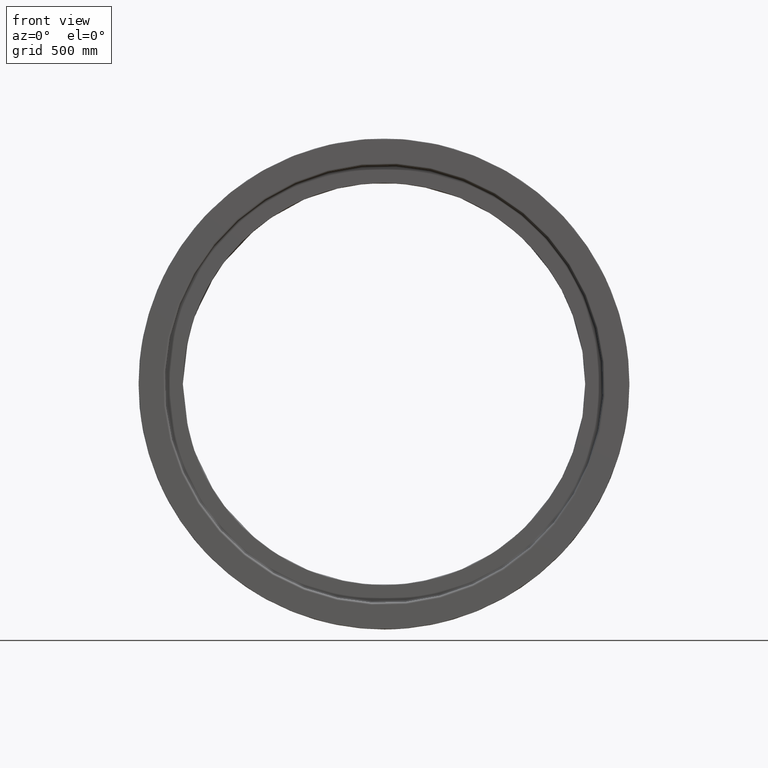
[diagram: clean part render]
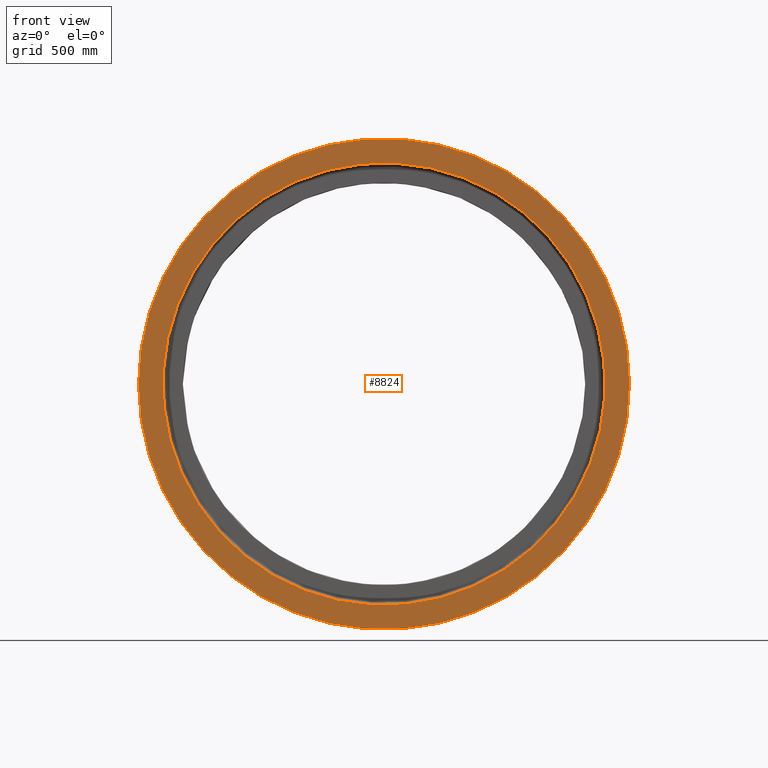
[diagram: same view with one face highlighted and labeled with its STEP entity id]
A machine part, front view. The second image highlights one B-rep face of the part: STEP entity #8824.
In plain terms, the highlighted planar face has unit normal (0, 1, 0).
Its self-contained STEP definition (entity closure, byte-faithful):
#880 = VERTEX_POINT ( 'NONE', #22556 ) ;
#1027 = VERTEX_POINT ( 'NONE', #5310 ) ;
#1155 = CARTESIAN_POINT ( 'NONE',  ( 0.0000000000000000000, 0.0000000000000000000, -145.0000000000000000 ) ) ;
#1221 = CIRCLE ( 'NONE', #3422, 1220.000000000000000 ) ;
#1373 = DIRECTION ( 'NONE',  ( 1.000000000000000000, 0.0000000000000000000, 0.0000000000000000000 ) ) ;
#1471 = ORIENTED_EDGE ( 'NONE', *, *, #7753, .T. ) ;
#2582 = DIRECTION ( 'NONE',  ( 1.000000000000000000, 0.0000000000000000000, 0.0000000000000000000 ) ) ;
#2609 = EDGE_CURVE ( 'NONE', #21825, #1027, #1221, .T. ) ;
#3422 = AXIS2_PLACEMENT_3D ( 'NONE', #16474, #17850, #19577 ) ;
#4214 = DIRECTION ( 'NONE',  ( -1.532081463855070920E-17, -1.912374979584885558E-16, 1.000000000000000000 ) ) ;
#5310 = CARTESIAN_POINT ( 'NONE',  ( -1220.000000000000000, 1.494069094959770827E-13, -145.0000000000000000 ) ) ;
#5758 = CIRCLE ( 'NONE', #22288, 1099.000000000000000 ) ;
#7753 = EDGE_CURVE ( 'NONE', #8758, #880, #16132, .T. ) ;
#8743 = DIRECTION ( 'NONE',  ( -1.532081463855070920E-17, -1.912374979584885558E-16, 1.000000000000000000 ) ) ;
#8758 = VERTEX_POINT ( 'NONE', #9978 ) ;
#8824 = ADVANCED_FACE ( 'NONE', ( #19058, #15503 ), #16894, .F. ) ;
#9604 = CARTESIAN_POINT ( 'NONE',  ( 0.0000000000000000000, 2.772943720398084389E-14, -145.0000000000000284 ) ) ;
#9978 = CARTESIAN_POINT ( 'NONE',  ( -851.3164014389337808, -695.0261755078464603, -145.0000000000001137 ) ) ;
#10463 = CARTESIAN_POINT ( 'NONE',  ( 0.0000000000000000000, 2.772943720398084389E-14, -145.0000000000000284 ) ) ;
#11481 = ORIENTED_EDGE ( 'NONE', *, *, #15297, .T. ) ;
#12980 = AXIS2_PLACEMENT_3D ( 'NONE', #1155, #17113, #1373 ) ;
#13926 = DIRECTION ( 'NONE',  ( 0.7746282087706404251, 0.6324169021909431532, 1.262765041657366403E-16 ) ) ;
#14163 = ORIENTED_EDGE ( 'NONE', *, *, #2609, .F. ) ;
#14293 = AXIS2_PLACEMENT_3D ( 'NONE', #9604, #4214, #18001 ) ;
#14586 = EDGE_LOOP ( 'NONE', ( #11481, #1471 ) ) ;
#15297 = EDGE_CURVE ( 'NONE', #880, #8758, #5758, .T. ) ;
#15503 = FACE_OUTER_BOUND ( 'NONE', #22107, .T. ) ;
#16132 = CIRCLE ( 'NONE', #14293, 1099.000000000000000 ) ;
#16339 = ORIENTED_EDGE ( 'NONE', *, *, #22512, .F. ) ;
#16474 = CARTESIAN_POINT ( 'NONE',  ( 0.0000000000000000000, 0.0000000000000000000, -145.0000000000000000 ) ) ;
#16571 = AXIS2_PLACEMENT_3D ( 'NONE', #18090, #19811, #2582 ) ;
#16894 = PLANE ( 'NONE',  #12980 ) ;
#17113 = DIRECTION ( 'NONE',  ( 0.0000000000000000000, 0.0000000000000000000, 1.000000000000000000 ) ) ;
#17850 = DIRECTION ( 'NONE',  ( 0.0000000000000000000, 0.0000000000000000000, 1.000000000000000000 ) ) ;
#18001 = DIRECTION ( 'NONE',  ( 0.7746282087706404251, 0.6324169021909431532, 1.262765041657366403E-16 ) ) ;
#18090 = CARTESIAN_POINT ( 'NONE',  ( 0.0000000000000000000, 0.0000000000000000000, -145.0000000000000000 ) ) ;
#19058 = FACE_BOUND ( 'NONE', #14586, .T. ) ;
#19148 = CIRCLE ( 'NONE', #16571, 1220.000000000000000 ) ;
#19577 = DIRECTION ( 'NONE',  ( 1.000000000000000000, 0.0000000000000000000, 0.0000000000000000000 ) ) ;
#19811 = DIRECTION ( 'NONE',  ( 0.0000000000000000000, 0.0000000000000000000, 1.000000000000000000 ) ) ;
#21797 = CARTESIAN_POINT ( 'NONE',  ( 1220.000000000000000, 0.0000000000000000000, -145.0000000000000000 ) ) ;
#21825 = VERTEX_POINT ( 'NONE', #21797 ) ;
#22107 = EDGE_LOOP ( 'NONE', ( #14163, #16339 ) ) ;
#22288 = AXIS2_PLACEMENT_3D ( 'NONE', #10463, #8743, #13926 ) ;
#22512 = EDGE_CURVE ( 'NONE', #1027, #21825, #19148, .T. ) ;
#22556 = CARTESIAN_POINT ( 'NONE',  ( 851.3164014389336671, 695.0261755078465740, -144.9999999999998295 ) ) ;